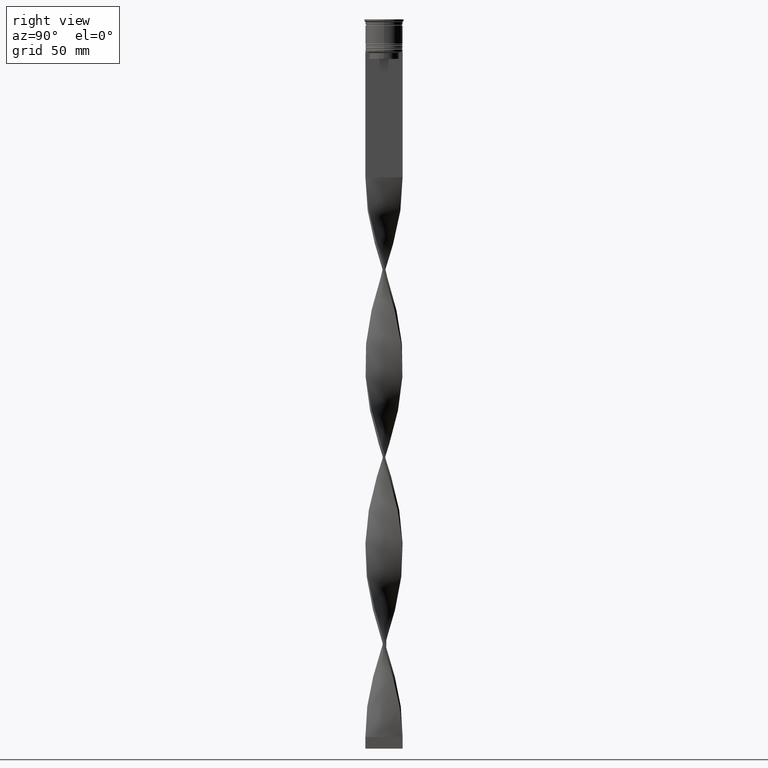
[diagram: clean part render]
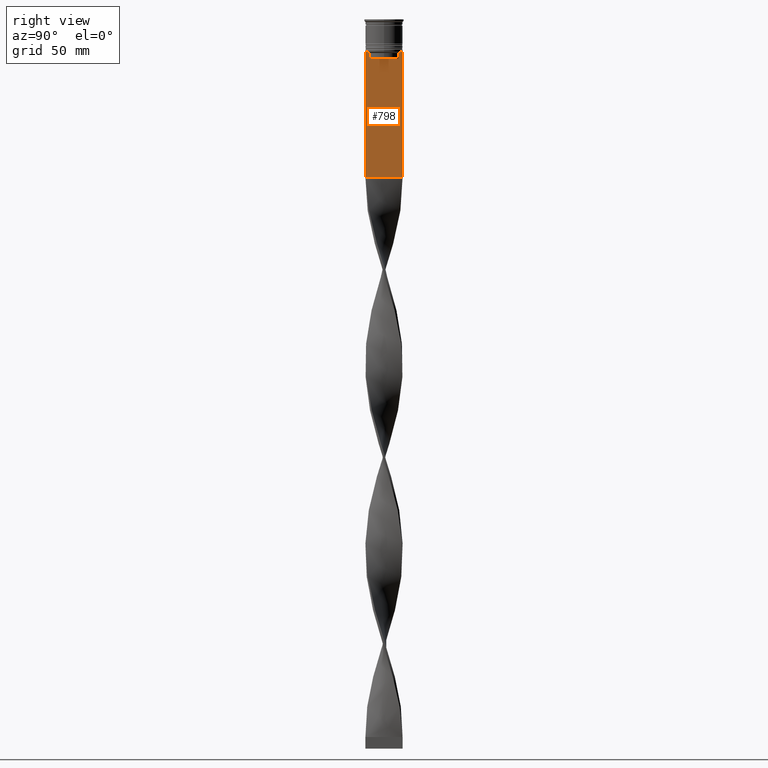
[diagram: same view with one face highlighted and labeled with its STEP entity id]
A machine part, right view. The second image highlights one B-rep face of the part: STEP entity #798.
In plain terms, the highlighted planar face has unit normal (-1, 0, 0).
Its self-contained STEP definition (entity closure, byte-faithful):
#8 = DIRECTION ( 'NONE',  ( 0.000000000000000000, -1.000000000000000000, 0.000000000000000000 ) ) ;
#83 = ORIENTED_EDGE ( 'NONE', *, *, #712, .T. ) ;
#144 = CARTESIAN_POINT ( 'NONE',  ( 0.5000000000000001110, -6.380438856379708312, -17.00000000000000000 ) ) ;
#161 = EDGE_CURVE ( 'NONE', #493, #3124, #4001, .T. ) ;
#204 = VECTOR ( 'NONE', #1143, 1000.000000000000000 ) ;
#206 = VECTOR ( 'NONE', #630, 1000.000000000000000 ) ;
#303 = VERTEX_POINT ( 'NONE', #2714 ) ;
#451 = CARTESIAN_POINT ( 'NONE',  ( 0.5000000000000001110, 6.380438856379708312, 0.000000000000000000 ) ) ;
#493 = VERTEX_POINT ( 'NONE', #734 ) ;
#537 = CARTESIAN_POINT ( 'NONE',  ( 0.5000000000000001110, -8.000000000000003553, -68.00000000000000000 ) ) ;
#587 = CARTESIAN_POINT ( 'NONE',  ( 0.5000000000000001110, -8.000000000000003553, -14.00000000000000178 ) ) ;
#597 = DIRECTION ( 'NONE',  ( 0.000000000000000000, 1.000000000000000000, 0.000000000000000000 ) ) ;
#607 = EDGE_LOOP ( 'NONE', ( #668, #3556, #1956, #620, #3157, #3784, #698, #83, #807, #2937, #3042, #2326 ) ) ;
#620 = ORIENTED_EDGE ( 'NONE', *, *, #3721, .T. ) ;
#630 = DIRECTION ( 'NONE',  ( 0.000000000000000000, 0.000000000000000000, -1.000000000000000000 ) ) ;
#668 = ORIENTED_EDGE ( 'NONE', *, *, #1708, .T. ) ;
#698 = ORIENTED_EDGE ( 'NONE', *, *, #1273, .T. ) ;
#712 = EDGE_CURVE ( 'NONE', #4053, #2236, #2016, .T. ) ;
#734 = CARTESIAN_POINT ( 'NONE',  ( 0.5000000000000001110, 6.380438856379708312, -14.50000000000000000 ) ) ;
#744 = CARTESIAN_POINT ( 'NONE',  ( 0.5000000000000001110, -6.380438856379708312, 0.000000000000000000 ) ) ;
#798 = ADVANCED_FACE ( 'NONE', ( #1998 ), #3262, .F. ) ;
#807 = ORIENTED_EDGE ( 'NONE', *, *, #4040, .T. ) ;
#1047 = VECTOR ( 'NONE', #3627, 1000.000000000000000 ) ;
#1057 = VERTEX_POINT ( 'NONE', #2752 ) ;
#1078 = CARTESIAN_POINT ( 'NONE',  ( 0.5000000000000001110, -8.000000000000003553, -14.00000000000000178 ) ) ;
#1098 = DIRECTION ( 'NONE',  ( -0.000000000000000000, -0.000000000000000000, 1.000000000000000000 ) ) ;
#1143 = DIRECTION ( 'NONE',  ( 0.000000000000000000, -1.000000000000000000, 0.000000000000000000 ) ) ;
#1146 = EDGE_CURVE ( 'NONE', #3890, #303, #2143, .T. ) ;
#1151 = DIRECTION ( 'NONE',  ( 0.000000000000000000, 0.000000000000000000, -1.000000000000000000 ) ) ;
#1214 = CARTESIAN_POINT ( 'NONE',  ( 0.5000000000000001110, 6.380438856379708312, -17.00000000000000000 ) ) ;
#1257 = VERTEX_POINT ( 'NONE', #144 ) ;
#1273 = EDGE_CURVE ( 'NONE', #1057, #4053, #2358, .T. ) ;
#1282 = DIRECTION ( 'NONE',  ( -1.000000000000000000, 0.000000000000000000, 0.000000000000000000 ) ) ;
#1301 = CARTESIAN_POINT ( 'NONE',  ( 0.5000000000000001110, -8.000000000000003553, -68.00000000000000000 ) ) ;
#1367 = CARTESIAN_POINT ( 'NONE',  ( 0.5000000000000001110, -8.000000000000003553, -14.00000000000000178 ) ) ;
#1375 = AXIS2_PLACEMENT_3D ( 'NONE', #3578, #1282, #3916 ) ;
#1384 = CARTESIAN_POINT ( 'NONE',  ( 0.5000000000000001110, 7.999999999999996447, 2.031219541881394530 ) ) ;
#1389 = LINE ( 'NONE', #744, #2109 ) ;
#1399 = CARTESIAN_POINT ( 'NONE',  ( 0.5000000000000001110, -7.884161337770806632, -14.00000000000000178 ) ) ;
#1433 = VECTOR ( 'NONE', #8, 1000.000000000000000 ) ;
#1434 = DIRECTION ( 'NONE',  ( 0.000000000000000000, -1.000000000000000000, 0.000000000000000000 ) ) ;
#1442 = EDGE_CURVE ( 'NONE', #3890, #1543, #1759, .T. ) ;
#1464 = CARTESIAN_POINT ( 'NONE',  ( 0.5000000000000001110, -6.380438856379708312, -14.50000000000000000 ) ) ;
#1543 = VERTEX_POINT ( 'NONE', #2189 ) ;
#1589 = VERTEX_POINT ( 'NONE', #2276 ) ;
#1591 = CARTESIAN_POINT ( 'NONE',  ( 0.5000000000000001110, 6.547597841304911626, -14.33335192459222718 ) ) ;
#1613 = B_SPLINE_CURVE_WITH_KNOTS ( 'NONE', 3,
 ( #1464, #1734, #3974, #3697 ),
 .UNSPECIFIED., .F., .F.,
 ( 4, 4 ),
 ( 0.02996184199614751464, 0.03067452609193705923 ),
 .UNSPECIFIED. ) ;
#1708 = EDGE_CURVE ( 'NONE', #1543, #1589, #2815, .T. ) ;
#1734 = CARTESIAN_POINT ( 'NONE',  ( 0.5000000000000001110, -6.547597841511247019, -14.33335192438652150 ) ) ;
#1759 = LINE ( 'NONE', #3434, #3635 ) ;
#1843 = VECTOR ( 'NONE', #597, 1000.000000000000000 ) ;
#1956 = ORIENTED_EDGE ( 'NONE', *, *, #161, .T. ) ;
#1998 = FACE_OUTER_BOUND ( 'NONE', #607, .T. ) ;
#2016 = LINE ( 'NONE', #1367, #2891 ) ;
#2109 = VECTOR ( 'NONE', #1098, 1000.000000000000000 ) ;
#2143 = LINE ( 'NONE', #1384, #2167 ) ;
#2167 = VECTOR ( 'NONE', #2670, 1000.000000000000000 ) ;
#2168 = CARTESIAN_POINT ( 'NONE',  ( 0.5000000000000001110, -8.000000000000003553, 2.031219541881394530 ) ) ;
#2189 = CARTESIAN_POINT ( 'NONE',  ( 0.5000000000000001110, 7.884161337770806632, -14.00000000000000178 ) ) ;
#2236 = VERTEX_POINT ( 'NONE', #3282 ) ;
#2276 = CARTESIAN_POINT ( 'NONE',  ( 0.5000000000000001110, 6.881860213634098500, -14.00000000000000178 ) ) ;
#2326 = ORIENTED_EDGE ( 'NONE', *, *, #1442, .T. ) ;
#2358 = LINE ( 'NONE', #1078, #1047 ) ;
#2359 = CARTESIAN_POINT ( 'NONE',  ( 0.5000000000000001110, 6.881860213634098500, -14.00000000000000178 ) ) ;
#2550 = CARTESIAN_POINT ( 'NONE',  ( 0.5000000000000001110, 7.999999999999996447, -14.00000000000000178 ) ) ;
#2590 = VERTEX_POINT ( 'NONE', #1301 ) ;
#2598 = DIRECTION ( 'NONE',  ( 0.000000000000000000, -1.000000000000000000, 0.000000000000000000 ) ) ;
#2653 = CARTESIAN_POINT ( 'NONE',  ( 0.5000000000000001110, 6.380438856379708312, -14.50000000000000000 ) ) ;
#2670 = DIRECTION ( 'NONE',  ( 0.000000000000000000, 0.000000000000000000, -1.000000000000000000 ) ) ;
#2671 = CARTESIAN_POINT ( 'NONE',  ( 0.5000000000000001110, 6.714736947114692711, -14.16668390704818847 ) ) ;
#2714 = CARTESIAN_POINT ( 'NONE',  ( 0.5000000000000001110, 7.999999999999996447, -68.00000000000000000 ) ) ;
#2752 = CARTESIAN_POINT ( 'NONE',  ( 0.5000000000000001110, -6.881860213634098500, -14.00000000000000178 ) ) ;
#2815 = LINE ( 'NONE', #587, #1433 ) ;
#2840 = EDGE_CURVE ( 'NONE', #1257, #3911, #1389, .T. ) ;
#2860 = CARTESIAN_POINT ( 'NONE',  ( 0.5000000000000001110, -6.380438856379708312, -14.50000000000000000 ) ) ;
#2891 = VECTOR ( 'NONE', #2598, 1000.000000000000000 ) ;
#2937 = ORIENTED_EDGE ( 'NONE', *, *, #3120, .T. ) ;
#3042 = ORIENTED_EDGE ( 'NONE', *, *, #1146, .F. ) ;
#3120 = EDGE_CURVE ( 'NONE', #2590, #303, #3376, .T. ) ;
#3124 = VERTEX_POINT ( 'NONE', #1214 ) ;
#3157 = ORIENTED_EDGE ( 'NONE', *, *, #2840, .T. ) ;
#3254 = B_SPLINE_CURVE_WITH_KNOTS ( 'NONE', 3,
 ( #2359, #2671, #1591, #2653 ),
 .UNSPECIFIED., .F., .F.,
 ( 4, 4 ),
 ( 0.01172465562756038263, 0.01243276816391822651 ),
 .UNSPECIFIED. ) ;
#3262 = PLANE ( 'NONE',  #1375 ) ;
#3282 = CARTESIAN_POINT ( 'NONE',  ( 0.5000000000000001110, -8.000000000000003553, -14.00000000000000178 ) ) ;
#3326 = LINE ( 'NONE', #3955, #204 ) ;
#3376 = LINE ( 'NONE', #537, #1843 ) ;
#3434 = CARTESIAN_POINT ( 'NONE',  ( 0.5000000000000001110, -8.000000000000003553, -14.00000000000000178 ) ) ;
#3556 = ORIENTED_EDGE ( 'NONE', *, *, #3875, .T. ) ;
#3578 = CARTESIAN_POINT ( 'NONE',  ( 0.5000000000000001110, -8.000000000000003553, 2.031219541881394530 ) ) ;
#3627 = DIRECTION ( 'NONE',  ( 0.000000000000000000, -1.000000000000000000, 0.000000000000000000 ) ) ;
#3635 = VECTOR ( 'NONE', #1434, 1000.000000000000000 ) ;
#3697 = CARTESIAN_POINT ( 'NONE',  ( 0.5000000000000001110, -6.881860213634098500, -14.00000000000000178 ) ) ;
#3721 = EDGE_CURVE ( 'NONE', #3124, #1257, #3326, .T. ) ;
#3737 = EDGE_CURVE ( 'NONE', #3911, #1057, #1613, .T. ) ;
#3759 = VECTOR ( 'NONE', #1151, 1000.000000000000000 ) ;
#3784 = ORIENTED_EDGE ( 'NONE', *, *, #3737, .T. ) ;
#3803 = LINE ( 'NONE', #2168, #206 ) ;
#3875 = EDGE_CURVE ( 'NONE', #1589, #493, #3254, .T. ) ;
#3890 = VERTEX_POINT ( 'NONE', #2550 ) ;
#3911 = VERTEX_POINT ( 'NONE', #2860 ) ;
#3916 = DIRECTION ( 'NONE',  ( 0.000000000000000000, 0.000000000000000000, 1.000000000000000000 ) ) ;
#3955 = CARTESIAN_POINT ( 'NONE',  ( 0.5000000000000001110, 6.399999999999999467, -17.00000000000000000 ) ) ;
#3974 = CARTESIAN_POINT ( 'NONE',  ( 0.5000000000000001110, -6.714736947305993908, -14.16668390685738821 ) ) ;
#4001 = LINE ( 'NONE', #451, #3759 ) ;
#4040 = EDGE_CURVE ( 'NONE', #2236, #2590, #3803, .T. ) ;
#4053 = VERTEX_POINT ( 'NONE', #1399 ) ;